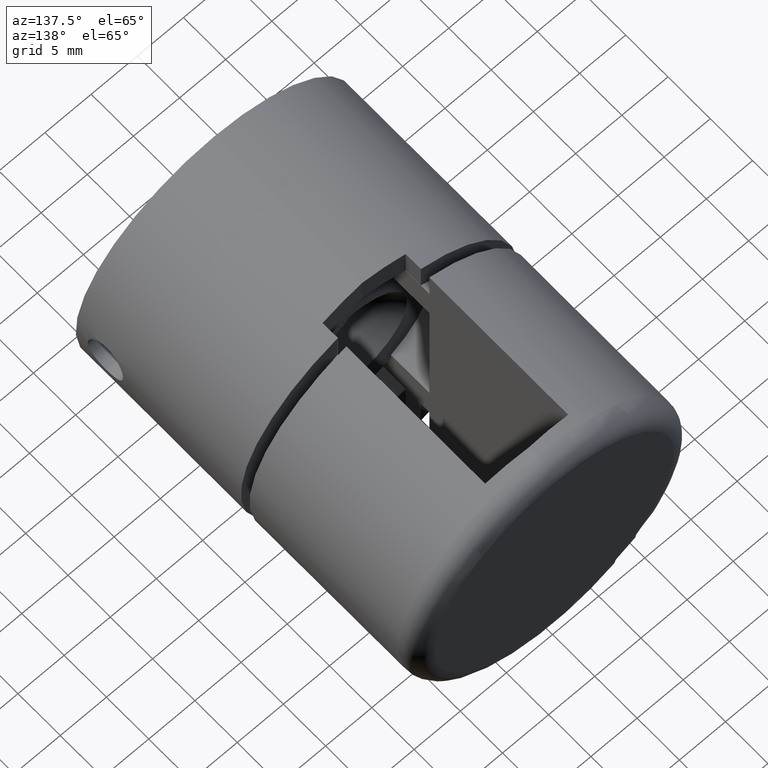
[diagram: clean part render]
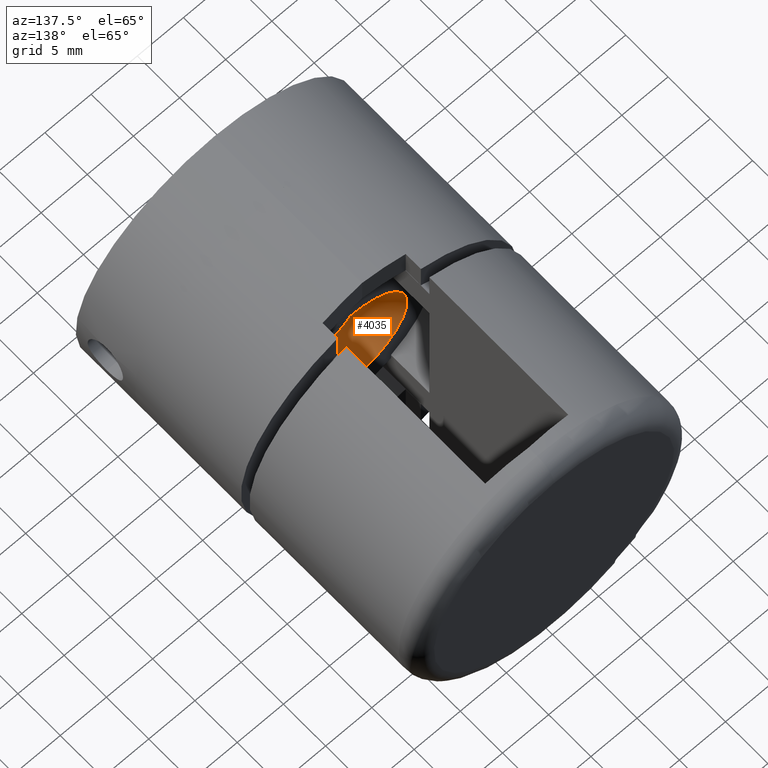
[diagram: same view with one face highlighted and labeled with its STEP entity id]
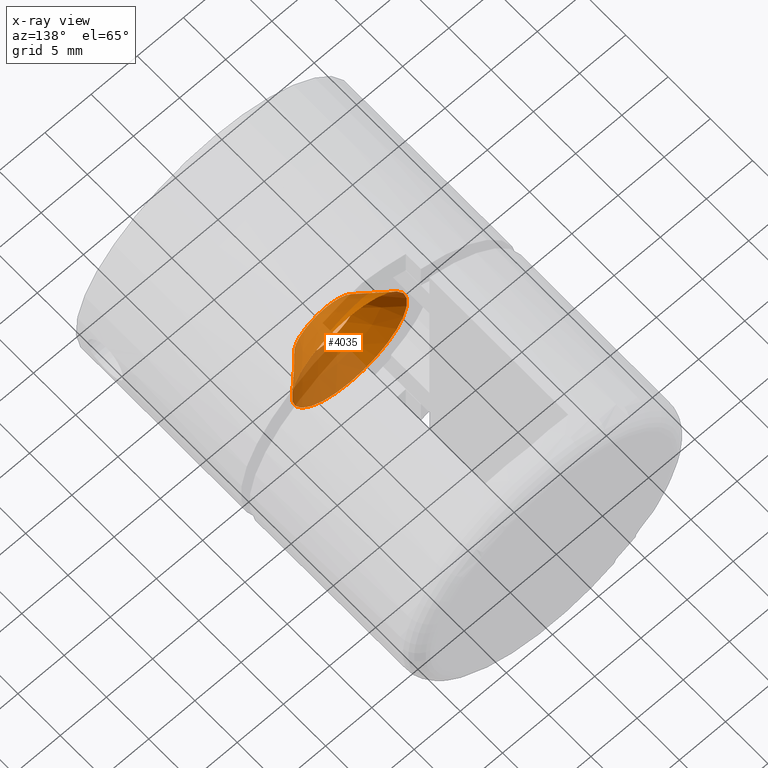
[diagram: x-ray of the same camera — body ghosted, the highlighted face saturated]
A machine part, auxiliary view. The second image highlights one B-rep face of the part: STEP entity #4035.
The next image is the same camera in x-ray: the body ghosted, the highlighted face saturated — about 59% of this face is hidden behind the body in this view.
In plain terms, the highlighted conical surface has half-angle 45 deg.
Its self-contained STEP definition (entity closure, byte-faithful):
#215 = AXIS2_PLACEMENT_3D ( 'NONE', #7172, #4518, #9903 ) ;
#242 = EDGE_CURVE ( 'NONE', #6579, #6579, #6642, .T. ) ;
#367 = ORIENTED_EDGE ( 'NONE', *, *, #5461, .T. ) ;
#925 = DIRECTION ( 'NONE',  ( -0.0000000000000000000, 1.000000000000000000, -0.0000000000000000000 ) ) ;
#1962 = CARTESIAN_POINT ( 'NONE',  ( 0.0000000000000000000, 13.15000000000000000, 3.399999999999997700 ) ) ;
#2411 = DIRECTION ( 'NONE',  ( 0.0000000000000000000, 0.0000000000000000000, 1.000000000000000000 ) ) ;
#3436 = CARTESIAN_POINT ( 'NONE',  ( 0.0000000000000000000, 16.00000000000000000, 0.0000000000000000000 ) ) ;
#3460 = VERTEX_POINT ( 'NONE', #7165 ) ;
#4035 = ADVANCED_FACE ( 'NONE', ( #5807, #10833 ), #14418, .F. ) ;
#4518 = DIRECTION ( 'NONE',  ( -0.0000000000000000000, 1.000000000000000000, -0.0000000000000000000 ) ) ;
#5461 = EDGE_CURVE ( 'NONE', #3460, #3460, #9968, .T. ) ;
#5807 = FACE_BOUND ( 'NONE', #16885, .T. ) ;
#6579 = VERTEX_POINT ( 'NONE', #1962 ) ;
#6642 = CIRCLE ( 'NONE', #15208, 3.399999999999997700 ) ;
#7165 = CARTESIAN_POINT ( 'NONE',  ( 0.0000000000000000000, 16.00000000000000000, 6.250000000000000000 ) ) ;
#7172 = CARTESIAN_POINT ( 'NONE',  ( 0.0000000000000000000, 16.00000000000000000, 0.0000000000000000000 ) ) ;
#9735 = AXIS2_PLACEMENT_3D ( 'NONE', #3436, #925, #12783 ) ;
#9903 = DIRECTION ( 'NONE',  ( 0.0000000000000000000, 0.0000000000000000000, 1.000000000000000000 ) ) ;
#9968 = CIRCLE ( 'NONE', #215, 6.250000000000000000 ) ;
#10514 = EDGE_LOOP ( 'NONE', ( #367 ) ) ;
#10833 = FACE_OUTER_BOUND ( 'NONE', #10514, .T. ) ;
#12783 = DIRECTION ( 'NONE',  ( 0.0000000000000000000, 0.0000000000000000000, 1.000000000000000000 ) ) ;
#14288 = CARTESIAN_POINT ( 'NONE',  ( 0.0000000000000000000, 13.15000000000000000, 0.0000000000000000000 ) ) ;
#14418 = CONICAL_SURFACE ( 'NONE', #9735, 6.250000000000000000, 0.7853981633974487200 ) ;
#15208 = AXIS2_PLACEMENT_3D ( 'NONE', #14288, #15838, #2411 ) ;
#15787 = ORIENTED_EDGE ( 'NONE', *, *, #242, .T. ) ;
#15838 = DIRECTION ( 'NONE',  ( 0.0000000000000000000, -1.000000000000000000, 0.0000000000000000000 ) ) ;
#16885 = EDGE_LOOP ( 'NONE', ( #15787 ) ) ;